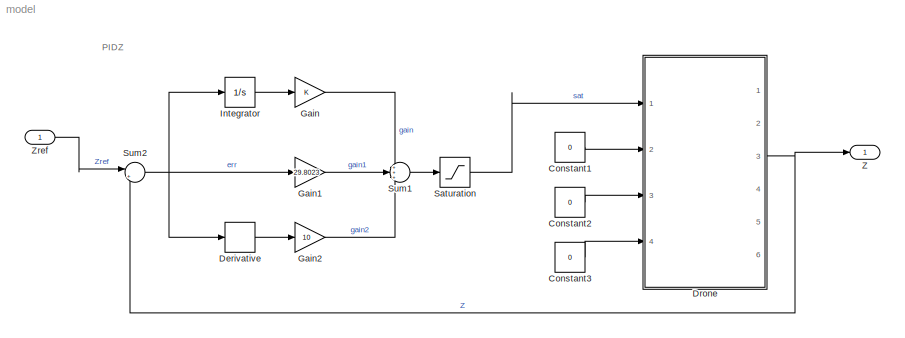
MODEL model
KIND model
BLOCK [Constant] Constant1
  SID = 105
  Value = 0
BLOCK [Constant] Constant2
  SID = 106
  Value = 0
BLOCK [Constant] Constant3
  SID = 107
  Value = 0
BLOCK [Derivative] Derivative
  SID = 95
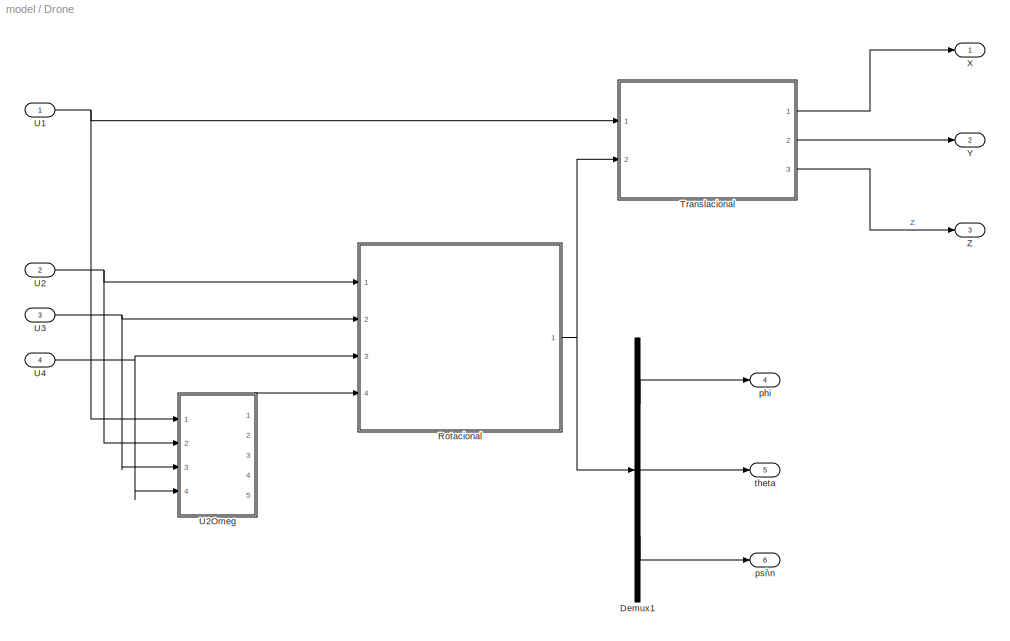
BLOCK [SubSystem] Drone
  Ports = [4, 6]
  RequestExecContextInheritance = off
  SID = 72
BLOCK [Demux] Drone/Demux1
  Outputs = 3
  Ports = [1, 3]
  SID = 54
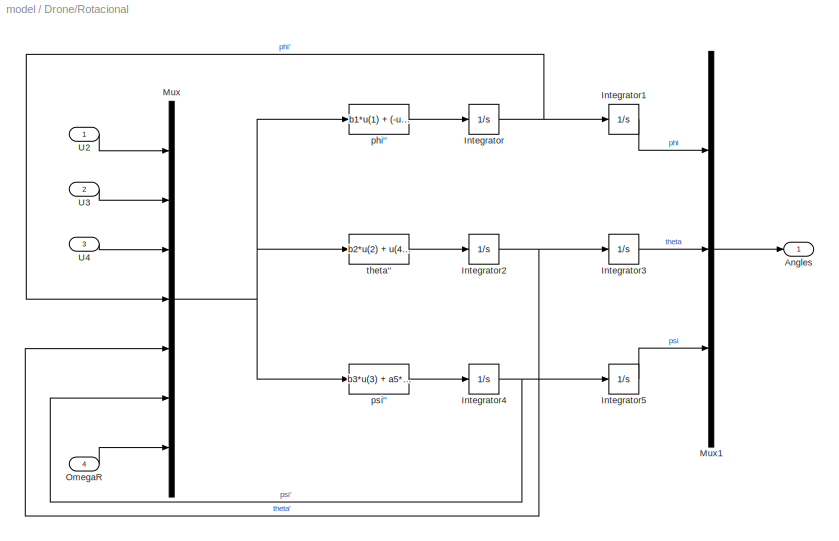
BLOCK [SubSystem] Drone/Rotacional
  Ports = [4, 1]
  RequestExecContextInheritance = off
  SID = 5
BLOCK [Outport] Drone/Rotacional/Angles
  SID = 7
BLOCK [Integrator] Drone/Rotacional/Integrator
  Ports = [1, 1]
  SID = 4
BLOCK [Integrator] Drone/Rotacional/Integrator1
  Ports = [1, 1]
  SID = 13
BLOCK [Integrator] Drone/Rotacional/Integrator2
  Ports = [1, 1]
  SID = 15
BLOCK [Integrator] Drone/Rotacional/Integrator3
  Ports = [1, 1]
  SID = 16
BLOCK [Integrator] Drone/Rotacional/Integrator4
  Ports = [1, 1]
  SID = 18
BLOCK [Integrator] Drone/Rotacional/Integrator5
  Ports = [1, 1]
  SID = 19
BLOCK [Mux] Drone/Rotacional/Mux
  DisplayOption = bar
  Inputs = 7
  Ports = [7, 1]
  SID = 1
BLOCK [Mux] Drone/Rotacional/Mux1
  DisplayOption = bar
  Inputs = 3
  Ports = [3, 1]
  SID = 20
BLOCK [Inport] Drone/Rotacional/OmegaR
  Port = 4
  SID = 133
BLOCK [Inport] Drone/Rotacional/U2
  SID = 6
BLOCK [Inport] Drone/Rotacional/U3
  Port = 2
  SID = 2
BLOCK [Inport] Drone/Rotacional/U4
  Port = 3
  SID = 11
BLOCK [Fcn] Drone/Rotacional/phi''
  Expr = b1*u(1) + (-u(5))*u(7)*a2 + a1*u(5)*u(6)
  SID = 12
BLOCK [Fcn] Drone/Rotacional/psi''
  Expr = b3*u(3) + a5*u(4)*u(5)
  SID = 17
BLOCK [Fcn] Drone/Rotacional/theta''
  Expr = b2*u(2) + u(4)*u(7)*a4 + a3*u(4)*u(6)
  SID = 14
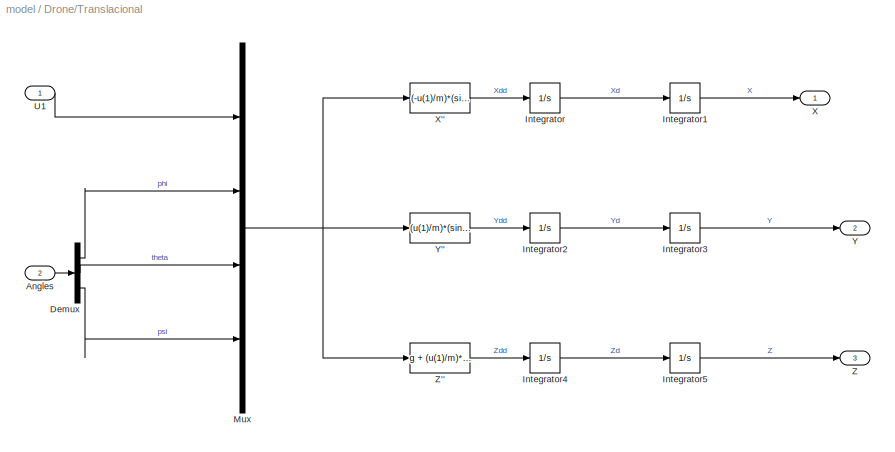
BLOCK [SubSystem] Drone/Translacional
  Ports = [2, 3]
  RequestExecContextInheritance = off
  SID = 23
BLOCK [Inport] Drone/Translacional/Angles
  Port = 2
  SID = 25
BLOCK [Demux] Drone/Translacional/Demux
  Outputs = 3
  Ports = [1, 3]
  SID = 39
BLOCK [Integrator] Drone/Translacional/Integrator
  Ports = [1, 1]
  SID = 27
BLOCK [Integrator] Drone/Translacional/Integrator1
  Ports = [1, 1]
  SID = 28
BLOCK [Integrator] Drone/Translacional/Integrator2
  Ports = [1, 1]
  SID = 44
BLOCK [Integrator] Drone/Translacional/Integrator3
  Ports = [1, 1]
  SID = 45
BLOCK [Integrator] Drone/Translacional/Integrator4
  Ports = [1, 1]
  SID = 47
BLOCK [Integrator] Drone/Translacional/Integrator5
  Ports = [1, 1]
  SID = 48
BLOCK [Mux] Drone/Translacional/Mux
  DisplayOption = bar
  Ports = [4, 1]
  SID = 40
BLOCK [Inport] Drone/Translacional/U1
  SID = 24
BLOCK [Outport] Drone/Translacional/X
  SID = 138
BLOCK [Fcn] Drone/Translacional/X''
  Expr = (-u(1)/m)*(sin(u(2))*sin(u(4)) + cos(u(2))*sin(u(3))*cos(u(4)))
  SID = 35
BLOCK [Outport] Drone/Translacional/Y
  Port = 2
  SID = 139
BLOCK [Fcn] Drone/Translacional/Y''
  Expr = (u(1)/m)*(sin(u(2))*cos(u(4)) - cos(u(2))*sin(u(3))*sin(u(4)))
  SID = 46
BLOCK [Outport] Drone/Translacional/Z
  Port = 3
  SID = 140
BLOCK [Fcn] Drone/Translacional/Z''
  Expr = g + (u(1)/m)*(cos(u(2))*cos(u(3)))
  SID = 49
BLOCK [Inport] Drone/U1
  SID = 73
BLOCK [Inport] Drone/U2
  Port = 2
  SID = 74
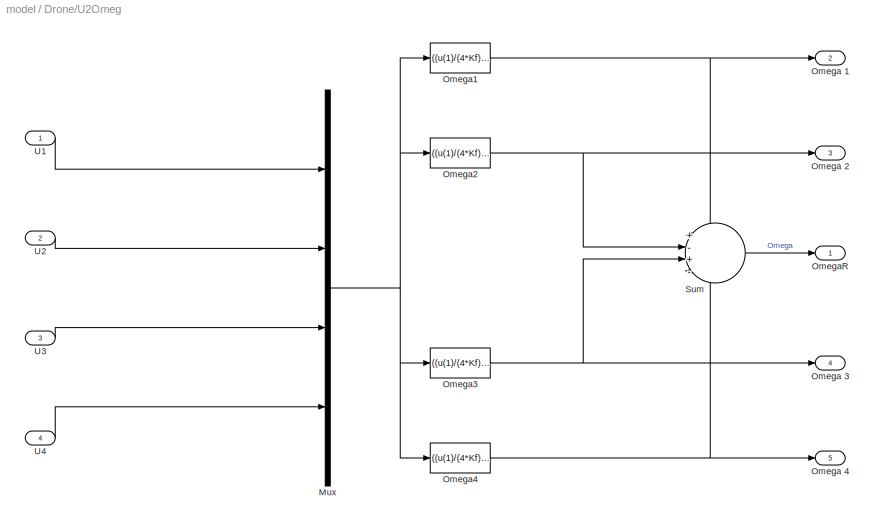
BLOCK [SubSystem] Drone/U2Omeg
  Ports = [4, 5]
  RequestExecContextInheritance = off
  SID = 120
BLOCK [Mux] Drone/U2Omeg/Mux
  DisplayOption = bar
  Ports = [4, 1]
  SID = 114
BLOCK [Outport] Drone/U2Omeg/Omega 1
  Port = 2
  SID = 126
BLOCK [Outport] Drone/U2Omeg/Omega 2
  Port = 3
  SID = 130
BLOCK [Outport] Drone/U2Omeg/Omega 3
  Port = 4
  SID = 131
BLOCK [Outport] Drone/U2Omeg/Omega 4
  Port = 5
  SID = 132
BLOCK [Fcn] Drone/U2Omeg/Omega1
  Expr = ((u(1)/(4*Kf)) + (u(3)/(2*Kf)) + (u(4)/(4*Km)))^(1/2)
  SID = 109
BLOCK [Fcn] Drone/U2Omeg/Omega2
  Expr = ((u(1)/(4*Kf)) - (u(2)/(2*Kf)) - (u(4)/(4*Km)))^(1/2)
  SID = 115
BLOCK [Fcn] Drone/U2Omeg/Omega3
  Expr = ((u(1)/(4*Kf)) - (u(3)/(2*Kf)) + (u(4)/(4*Km)))^(1/2)
  SID = 116
BLOCK [Fcn] Drone/U2Omeg/Omega4
  Expr = ((u(1)/(4*Kf)) + (u(2)/(2*Kf)) - (u(4)/(4*Km)))^(1/2)
  SID = 117
BLOCK [Outport] Drone/U2Omeg/OmegaR
  SID = 125
BLOCK [Sum] Drone/U2Omeg/Sum
  Inputs = +-+-
  Ports = [4, 1]
  SID = 118
BLOCK [Inport] Drone/U2Omeg/U1 
  SID = 121
BLOCK [Inport] Drone/U2Omeg/U2 
  Port = 2
  SID = 122
BLOCK [Inport] Drone/U2Omeg/U3 
  Port = 3
  SID = 123
BLOCK [Inport] Drone/U2Omeg/U4 
  Port = 4
  SID = 124
BLOCK [Inport] Drone/U3
  Port = 3
  SID = 75
BLOCK [Inport] Drone/U4
  Port = 4
  SID = 76
BLOCK [Outport] Drone/X
  SID = 77
BLOCK [Outport] Drone/Y
  Port = 2
  SID = 78
BLOCK [Outport] Drone/Z
  Port = 3
  SID = 79
BLOCK [Outport] Drone/phi
  Port = 4
  SID = 80
BLOCK [Outport] Drone/psi\n
  Port = 6
  SID = 82
BLOCK [Outport] Drone/theta
  Port = 5
  SID = 81
BLOCK [Gain] Gain
  SID = 85
BLOCK [Gain] Gain1
  Gain = 29.8023
  SID = 86
BLOCK [Gain] Gain2
  Gain = 10
  SID = 88
BLOCK [Integrator] Integrator
  Ports = [1, 1]
  SID = 84
BLOCK [Saturate] Saturation
  LowerLimit = -15
  SID = 91
  UpperLimit = 15
BLOCK [Sum] Sum1
  Inputs = +++
  Ports = [3, 1]
  SID = 90
BLOCK [Sum] Sum2
  Inputs = |+-
  Ports = [2, 1]
  SID = 93
BLOCK [Outport] Z
  SID = 136
BLOCK [Inport] Zref
  SID = 135
ANNOTATION (root): PIDZ
LINE Constant1:1 -> Drone:2
LINE Constant2:1 -> Drone:3
LINE Constant3:1 -> Drone:4
LINE Derivative:1 -> Gain2:1
LINE Drone/Demux1:1 -> Drone/phi:1
LINE Drone/Demux1:2 -> Drone/theta:1
LINE Drone/Demux1:3 -> Drone/psi\n:1
LINE Drone/Rotacional/Integrator1:1 -> Drone/Rotacional/Mux1:1
NET Drone/Rotacional/Integrator2:1 -> Drone/Rotacional/Integrator3:1, Drone/Rotacional/Mux:5
LINE Drone/Rotacional/Integrator3:1 -> Drone/Rotacional/Mux1:2
NET Drone/Rotacional/Integrator4:1 -> Drone/Rotacional/Integrator5:1, Drone/Rotacional/Mux:6
LINE Drone/Rotacional/Integrator5:1 -> Drone/Rotacional/Mux1:3
NET Drone/Rotacional/Integrator:1 -> Drone/Rotacional/Integrator1:1, Drone/Rotacional/Mux:4
LINE Drone/Rotacional/Mux1:1 -> Drone/Rotacional/Angles:1
NET Drone/Rotacional/Mux:1 -> Drone/Rotacional/phi'':1, Drone/Rotacional/psi'':1, Drone/Rotacional/theta'':1
LINE Drone/Rotacional/OmegaR:1 -> Drone/Rotacional/Mux:7
LINE Drone/Rotacional/U2:1 -> Drone/Rotacional/Mux:1
LINE Drone/Rotacional/U3:1 -> Drone/Rotacional/Mux:2
LINE Drone/Rotacional/U4:1 -> Drone/Rotacional/Mux:3
LINE Drone/Rotacional/phi'':1 -> Drone/Rotacional/Integrator:1
LINE Drone/Rotacional/psi'':1 -> Drone/Rotacional/Integrator4:1
LINE Drone/Rotacional/theta'':1 -> Drone/Rotacional/Integrator2:1
NET Drone/Rotacional:1 -> Drone/Demux1:1, Drone/Translacional:2
LINE Drone/Translacional/Angles:1 -> Drone/Translacional/Demux:1
LINE Drone/Translacional/Demux:1 -> Drone/Translacional/Mux:2
LINE Drone/Translacional/Demux:2 -> Drone/Translacional/Mux:3
LINE Drone/Translacional/Demux:3 -> Drone/Translacional/Mux:4
LINE Drone/Translacional/Integrator1:1 -> Drone/Translacional/X:1
LINE Drone/Translacional/Integrator2:1 -> Drone/Translacional/Integrator3:1
LINE Drone/Translacional/Integrator3:1 -> Drone/Translacional/Y:1
LINE Drone/Translacional/Integrator4:1 -> Drone/Translacional/Integrator5:1
LINE Drone/Translacional/Integrator5:1 -> Drone/Translacional/Z:1
LINE Drone/Translacional/Integrator:1 -> Drone/Translacional/Integrator1:1
NET Drone/Translacional/Mux:1 -> Drone/Translacional/X'':1, Drone/Translacional/Y'':1, Drone/Translacional/Z'':1
LINE Drone/Translacional/U1:1 -> Drone/Translacional/Mux:1
LINE Drone/Translacional/X'':1 -> Drone/Translacional/Integrator:1
LINE Drone/Translacional/Y'':1 -> Drone/Translacional/Integrator2:1
LINE Drone/Translacional/Z'':1 -> Drone/Translacional/Integrator4:1
LINE Drone/Translacional:1 -> Drone/X:1
LINE Drone/Translacional:2 -> Drone/Y:1
LINE Drone/Translacional:3 -> Drone/Z:1
NET Drone/U1:1 -> Drone/Translacional:1, Drone/U2Omeg:1
NET Drone/U2:1 -> Drone/Rotacional:1, Drone/U2Omeg:2
NET Drone/U2Omeg/Mux:1 -> Drone/U2Omeg/Omega1:1, Drone/U2Omeg/Omega2:1, Drone/U2Omeg/Omega3:1, Drone/U2Omeg/Omega4:1
NET Drone/U2Omeg/Omega1:1 -> Drone/U2Omeg/Omega 1:1, Drone/U2Omeg/Sum:1
NET Drone/U2Omeg/Omega2:1 -> Drone/U2Omeg/Omega 2:1, Drone/U2Omeg/Sum:2
NET Drone/U2Omeg/Omega3:1 -> Drone/U2Omeg/Omega 3:1, Drone/U2Omeg/Sum:3
NET Drone/U2Omeg/Omega4:1 -> Drone/U2Omeg/Omega 4:1, Drone/U2Omeg/Sum:4
LINE Drone/U2Omeg/Sum:1 -> Drone/U2Omeg/OmegaR:1
LINE Drone/U2Omeg/U1 :1 -> Drone/U2Omeg/Mux:1
LINE Drone/U2Omeg/U2 :1 -> Drone/U2Omeg/Mux:2
LINE Drone/U2Omeg/U3 :1 -> Drone/U2Omeg/Mux:3
LINE Drone/U2Omeg/U4 :1 -> Drone/U2Omeg/Mux:4
LINE Drone/U2Omeg:1 -> Drone/Rotacional:4
NET Drone/U3:1 -> Drone/Rotacional:2, Drone/U2Omeg:3
NET Drone/U4:1 -> Drone/Rotacional:3, Drone/U2Omeg:4
NET Drone:3 -> Sum2:2, Z:1
LINE Gain1:1 -> Sum1:2
LINE Gain2:1 -> Sum1:3
LINE Gain:1 -> Sum1:1
LINE Integrator:1 -> Gain:1
LINE Saturation:1 -> Drone:1
LINE Sum1:1 -> Saturation:1
NET Sum2:1 -> Derivative:1, Gain1:1, Integrator:1
LINE Zref:1 -> Sum2:1
note: NET lines group one-source signal fan-out (src -> all destinations, sorted); 1:1 wires keep LINE
